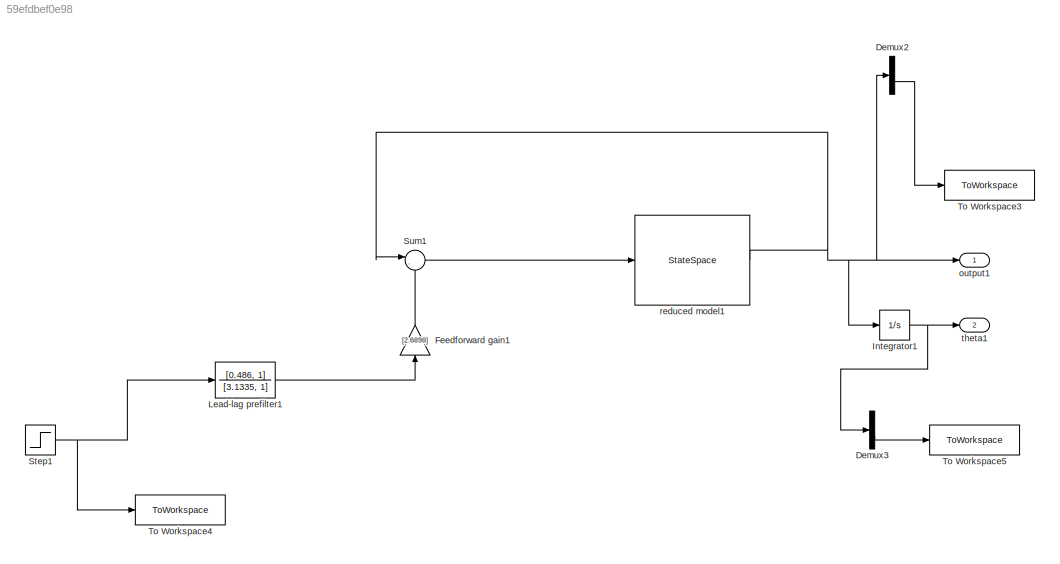
MODEL slx_59efdbef0e98
KIND model
CONFIG AbsTol = auto
CONFIG EnableMultiTasking = off
CONFIG FixedStep = auto
CONFIG MaxStep = auto
CONFIG MinStep = auto
CONFIG RelTol = 1e-3
CONFIG SampleTimeConstraint = Unconstrained
CONFIG SolverName = VariableStepAuto
CONFIG StartTime = 0.0
CONFIG StopTime = 25
BLOCK [TransferFcn]  Lead-lag prefilter1
  Denominator = [3.1335, 1]
  Numerator = [0.486, 1]
BLOCK [Demux] Demux2
  Outputs = 2
  Ports = [1, 2]
BLOCK [Demux] Demux3
  Outputs = 2
  Ports = [1, 2]
BLOCK [Gain] Feedforward gain1
  Gain = [2.6898]
  Multiplication = Matrix(K*u)
  NameLocation = right
BLOCK [Integrator] Integrator1
  Ports = [1, 1]
BLOCK [Step] Step1
  OutDataTypeStr = Inherit: Inherit via back propagation
  SampleTime = 0
  Time = 0
BLOCK [Sum] Sum1
  Inputs = |-+
  NameLocation = top
  Ports = [2, 1]
BLOCK [ToWorkspace] To Workspace3
  FixptAsFi = on
  MaxDataPoints = inf
  Ports = [1]
  SampleTime = -1
  SaveFormat = Timeseries
  VariableName = pitch_rate1
BLOCK [ToWorkspace] To Workspace4
  FixptAsFi = on
  MaxDataPoints = inf
  Ports = [1]
  SampleTime = -1
  SaveFormat = Timeseries
  VariableName = square_signal1
BLOCK [ToWorkspace] To Workspace5
  FixptAsFi = on
  MaxDataPoints = inf
  Ports = [1]
  SampleTime = -1
  SaveFormat = Timeseries
  VariableName = pitch_angle1
BLOCK [Outport] output1
BLOCK [StateSpace] reduced model1
  A = A_red
  B = B_red
  C = C_red
  D = D_red
  InitialCondition = 0
  Ports = [1, 1]
BLOCK [Outport] theta1
  Port = 2
LINE  Lead-lag prefilter1:1 -> Feedforward gain1:1
LINE Demux2:2 -> To Workspace3:1
LINE Demux3:2 -> To Workspace5:1
LINE Feedforward gain1:1 -> Sum1:2
NET Integrator1:1 -> Demux3:1, theta1:1
NET Step1:1 ->  Lead-lag prefilter1:1, To Workspace4:1
LINE Sum1:1 -> reduced model1:1
NET reduced model1:1 -> Demux2:1, Integrator1:1, Sum1:1, output1:1
note: NET lines group one-source signal fan-out (src -> all destinations, sorted); 1:1 wires keep LINE
